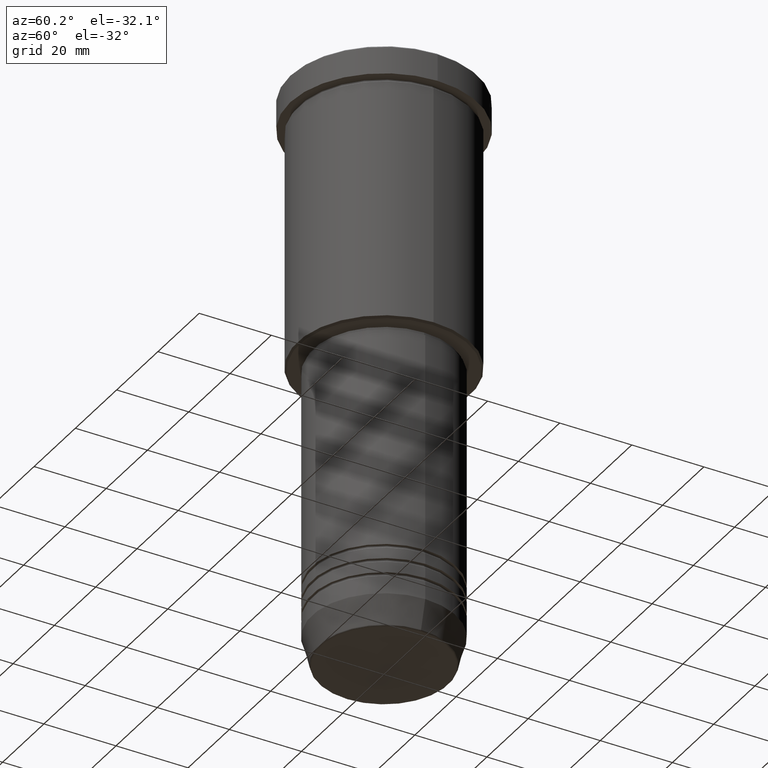
[diagram: clean part render]
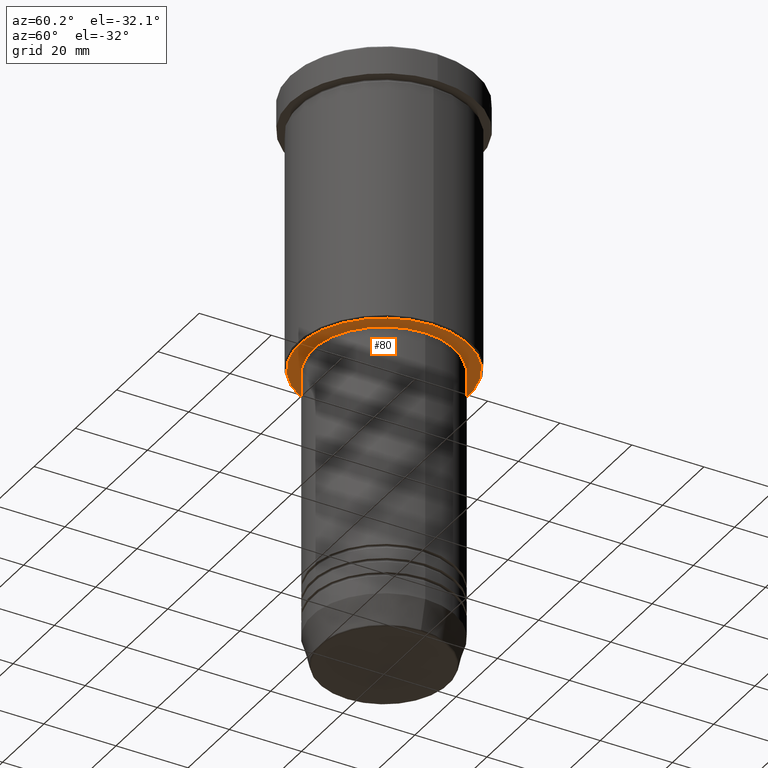
[diagram: same view with one face highlighted and labeled with its STEP entity id]
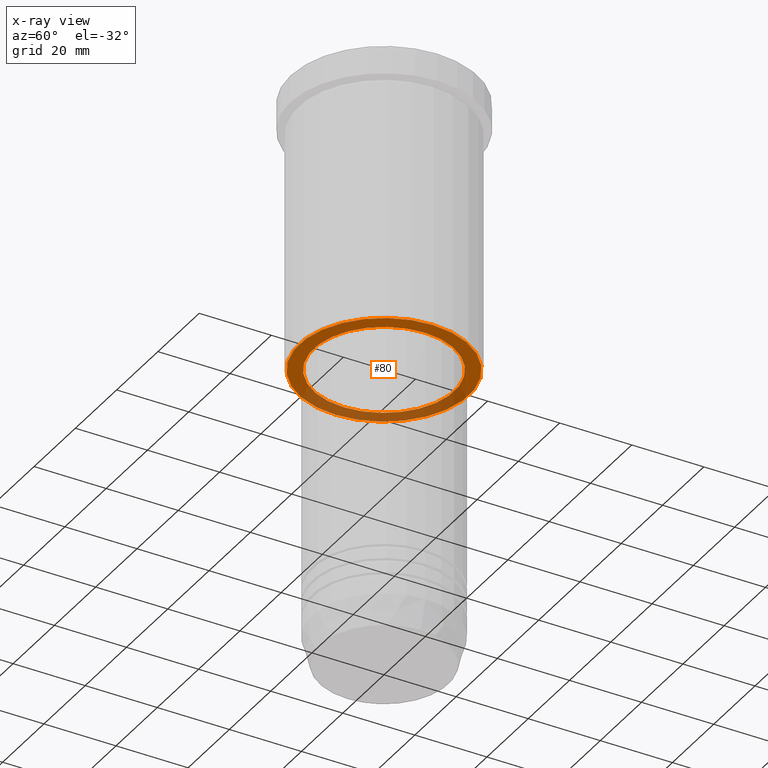
[diagram: x-ray of the same camera — body ghosted, the highlighted face saturated]
A machine part, auxiliary view. The second image highlights one B-rep face of the part: STEP entity #80.
The next image is the same camera in x-ray: the body ghosted, the highlighted face saturated — about 35% of this face is hidden behind the body in this view.
In plain terms, the highlighted planar face has unit normal (0, 0, -1).
Its self-contained STEP definition (entity closure, byte-faithful):
#14 = ORIENTED_EDGE ( 'NONE', *, *, #803, .T. ) ;
#19 = ORIENTED_EDGE ( 'NONE', *, *, #254, .T. ) ;
#58 = VERTEX_POINT ( 'NONE', #368 ) ;
#62 = VERTEX_POINT ( 'NONE', #1009 ) ;
#80 = ADVANCED_FACE ( 'NONE', ( #637, #1082 ), #176, .T. ) ;
#147 = DIRECTION ( 'NONE',  ( -0.000000000000000000, -0.000000000000000000, 1.000000000000000000 ) ) ;
#176 = PLANE ( 'NONE',  #610 ) ;
#250 = EDGE_LOOP ( 'NONE', ( #1026, #19 ) ) ;
#254 = EDGE_CURVE ( 'NONE', #395, #58, #902, .T. ) ;
#263 = EDGE_LOOP ( 'NONE', ( #957, #14 ) ) ;
#296 = CARTESIAN_POINT ( 'NONE',  ( 0.000000000000000000, 0.000000000000000000, -76.00000000000001421 ) ) ;
#368 = CARTESIAN_POINT ( 'NONE',  ( 19.50000000000000355, 0.000000000000000000, -76.00000000000001421 ) ) ;
#395 = VERTEX_POINT ( 'NONE', #1081 ) ;
#440 = AXIS2_PLACEMENT_3D ( 'NONE', #296, #762, #939 ) ;
#460 = DIRECTION ( 'NONE',  ( 0.000000000000000000, 0.000000000000000000, -1.000000000000000000 ) ) ;
#582 = CIRCLE ( 'NONE', #993, 23.49999999999997513 ) ;
#610 = AXIS2_PLACEMENT_3D ( 'NONE', #927, #627, #995 ) ;
#627 = DIRECTION ( 'NONE',  ( 0.000000000000000000, 0.000000000000000000, -1.000000000000000000 ) ) ;
#637 = FACE_OUTER_BOUND ( 'NONE', #263, .T. ) ;
#641 = CARTESIAN_POINT ( 'NONE',  ( 0.000000000000000000, 0.000000000000000000, -76.00000000000001421 ) ) ;
#644 = VERTEX_POINT ( 'NONE', #1005 ) ;
#660 = CARTESIAN_POINT ( 'NONE',  ( 0.000000000000000000, 0.000000000000000000, -76.00000000000001421 ) ) ;
#743 = DIRECTION ( 'NONE',  ( -1.000000000000000000, 0.000000000000000000, 0.000000000000000000 ) ) ;
#753 = AXIS2_PLACEMENT_3D ( 'NONE', #938, #147, #968 ) ;
#762 = DIRECTION ( 'NONE',  ( -0.000000000000000000, -0.000000000000000000, 1.000000000000000000 ) ) ;
#803 = EDGE_CURVE ( 'NONE', #62, #644, #1170, .T. ) ;
#810 = CIRCLE ( 'NONE', #440, 19.50000000000000355 ) ;
#834 = DIRECTION ( 'NONE',  ( -1.000000000000000000, 0.000000000000000000, 0.000000000000000000 ) ) ;
#836 = DIRECTION ( 'NONE',  ( 0.000000000000000000, 0.000000000000000000, -1.000000000000000000 ) ) ;
#875 = EDGE_CURVE ( 'NONE', #58, #395, #810, .T. ) ;
#902 = CIRCLE ( 'NONE', #753, 19.50000000000000355 ) ;
#927 = CARTESIAN_POINT ( 'NONE',  ( 0.000000000000000000, 24.00000000000000000, -76.00000000000001421 ) ) ;
#938 = CARTESIAN_POINT ( 'NONE',  ( 0.000000000000000000, 0.000000000000000000, -76.00000000000001421 ) ) ;
#939 = DIRECTION ( 'NONE',  ( 1.000000000000000000, 0.000000000000000000, 0.000000000000000000 ) ) ;
#957 = ORIENTED_EDGE ( 'NONE', *, *, #1158, .T. ) ;
#968 = DIRECTION ( 'NONE',  ( 1.000000000000000000, 0.000000000000000000, 0.000000000000000000 ) ) ;
#993 = AXIS2_PLACEMENT_3D ( 'NONE', #641, #460, #834 ) ;
#995 = DIRECTION ( 'NONE',  ( -1.000000000000000000, 0.000000000000000000, -0.000000000000000000 ) ) ;
#1005 = CARTESIAN_POINT ( 'NONE',  ( 23.49999999999997513, 0.000000000000000000, -76.00000000000001421 ) ) ;
#1009 = CARTESIAN_POINT ( 'NONE',  ( -23.49999999999997513, 2.908536147974962530E-15, -76.00000000000001421 ) ) ;
#1026 = ORIENTED_EDGE ( 'NONE', *, *, #875, .T. ) ;
#1081 = CARTESIAN_POINT ( 'NONE',  ( -19.50000000000000355, 2.388061258337339333E-15, -76.00000000000001421 ) ) ;
#1082 = FACE_BOUND ( 'NONE', #250, .T. ) ;
#1093 = AXIS2_PLACEMENT_3D ( 'NONE', #660, #836, #743 ) ;
#1158 = EDGE_CURVE ( 'NONE', #644, #62, #582, .T. ) ;
#1170 = CIRCLE ( 'NONE', #1093, 23.49999999999997513 ) ;